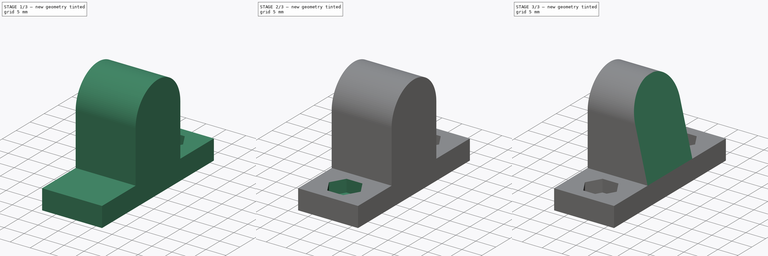
[diagram: build sequence overview — one tinted view per stage of 3, left to right]
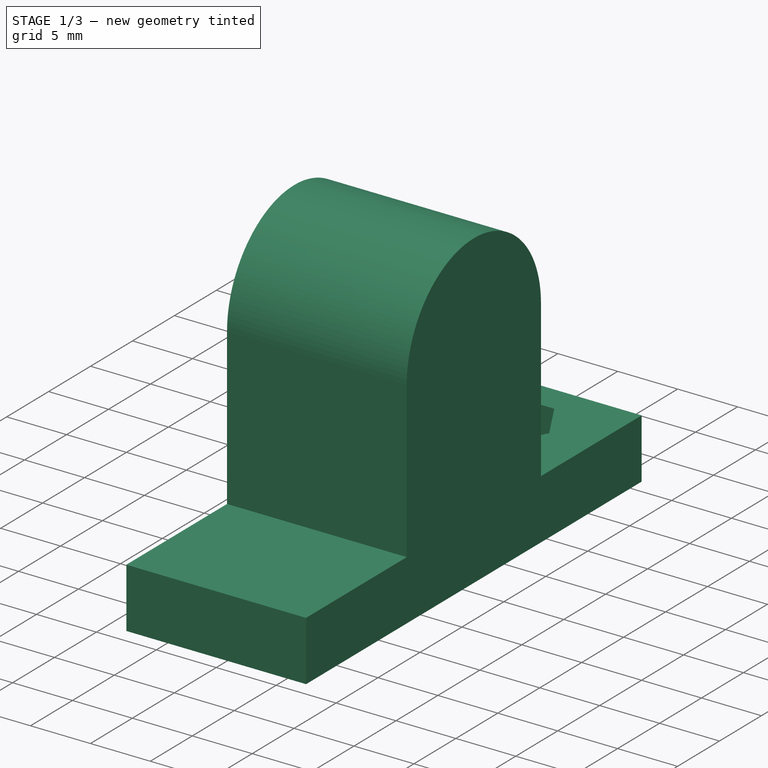
[diagram: stage 1 of 3 — iso view after this stage's code; geometry added in this stage tinted green]
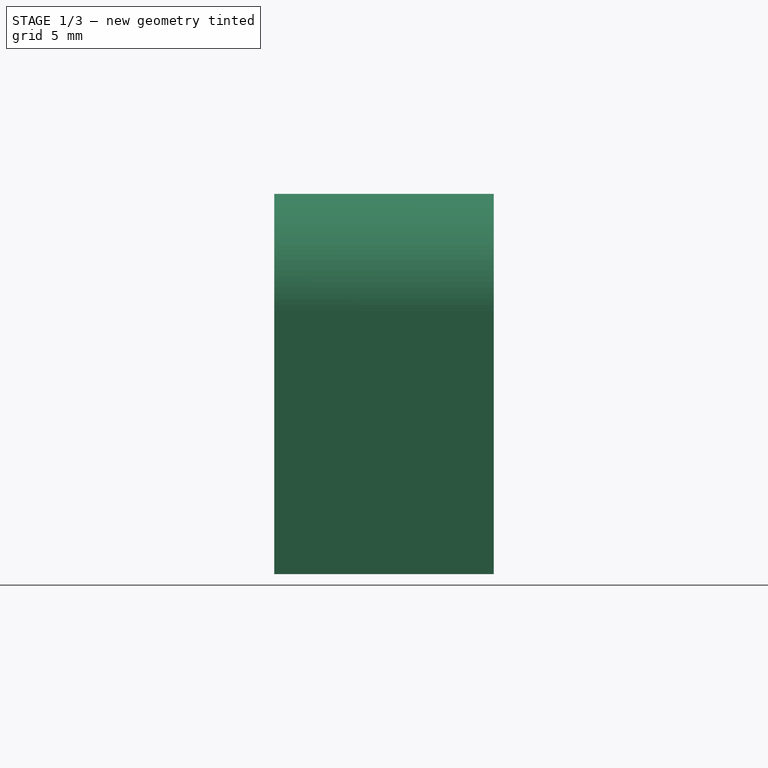
[diagram: stage 1 of 3 — front view after this stage's code; geometry added in this stage tinted green]
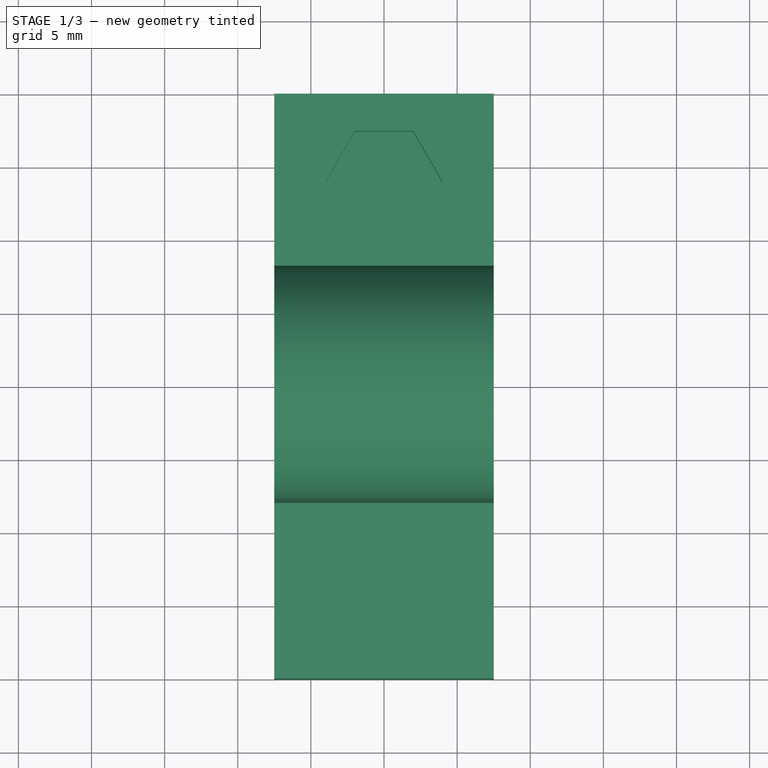
[diagram: stage 1 of 3 — top view after this stage's code; geometry added in this stage tinted green]
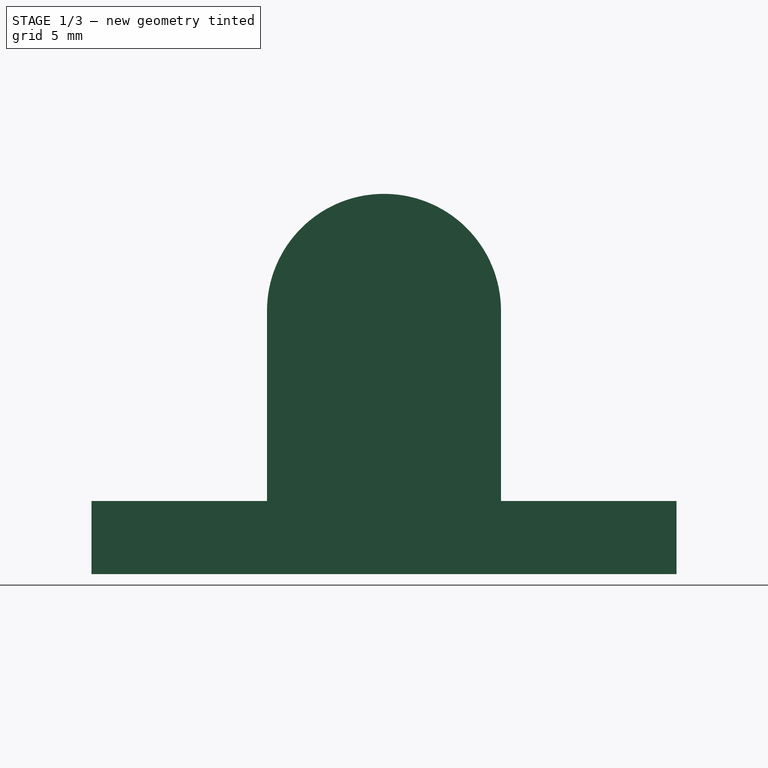
[diagram: stage 1 of 3 — right view after this stage's code; geometry added in this stage tinted green]
FCSTD DOCUMENT  (FreeCAD 0.19R24267 +148 (Git))
Label: GuidingEnd
License: All rights reserved
LicenseURL: http://en.wikipedia.org/wiki/All_rights_reserved
objects: Sketcher::SketchObject×5, PartDesign::Pocket×4, PartDesign::Body×2, PartDesign::Pad×1, PartDesign::Mirrored×1
note: 18 computed .brp shape members not serialized (recipe doc carries the construction recipe); baked Part::Feature solids carry a one-line shape summary decoded from their .brp

FEATURE [PartDesign::Body] Body
  Origin = -> Origin
FEATURE [Sketcher::SketchObject] Sketch
  FullyConstrained = true
  MapMode = 5
  Placement = pos=(0,0,0) rot=(0.57735,0.57735,0.57735;2.0944rad)
  Support = -> [YZ_Plane001]
  sketch-geometry (8):
    g0: LineSegment StartX=-20 StartY=0 StartZ=0 EndX=20 EndY=0 EndZ=0
    g1: LineSegment StartX=20 StartY=0 StartZ=0 EndX=20 EndY=5 EndZ=0
    g2: LineSegment StartX=20 StartY=5 StartZ=0 EndX=8 EndY=5 EndZ=0
    g3: LineSegment StartX=8 StartY=5 StartZ=0 EndX=8 EndY=18 EndZ=0
    g4: ArcOfCircle CenterX=0 CenterY=18 CenterZ=0 NormalX=0 NormalY=0 NormalZ=1 AngleXU=0 Radius=8 StartAngle=0 EndAngle=3.14159
    g5: LineSegment StartX=-8 StartY=18 StartZ=0 EndX=-8 EndY=5 EndZ=0
    g6: LineSegment StartX=-8 StartY=5 StartZ=0 EndX=-20 EndY=5 EndZ=0
    g7: LineSegment StartX=-20 StartY=5 StartZ=0 EndX=-20 EndY=0 EndZ=0
  constraints (21):
    c: PointOnObject(g0,g-1)
    c: Coincident(g0,g1)
    c: Coincident(g1,g2)
    c: Horizontal(g2)
    c: Coincident(g2,g3)
    c: Vertical(g3)
    c: PointOnObject(g4,g-2)
    c: Tangent(g4,g5) = -1.5708
    c: Coincident(g5,g6)
    c: Horizontal(g6)
    c: Coincident(g6,g7)
    c: Coincident(g7,g0)
    c: Vertical(g7)
    c: Symmetric(g5,g2,g-2)
    c: Symmetric(g0,g0,g-2)
    c: Tangent(g4,g3) = -1.5708
    c: DistanceY(g-1,g4) = 18
    c: DistanceY(g0,g6) = 5
    c: Radius(g4) = 8
    c: DistanceX(g0,g-1) = 20
    c: Vertical(g1)
FEATURE [PartDesign::Pad] Pad
  Direction = (1,1,1)
  Length = 15
  Length2 = 100
  Midplane = true
  Placement = pos=(0,0,0) rot=(0.57735,0.57735,0.57735;2.0944rad)
  Profile = -> Sketch
  Refine = true
  Type = 0
FEATURE [Sketcher::SketchObject] Sketch001
  ExternalGeometry = -> [Pad]
  FullyConstrained = true
  MapMode = 5
  Placement = pos=(-1.9e-15,2.8e-15,5) rot=(0,0,-1;1.5708rad)
  Support = -> [Pad]
  sketch-geometry (7):
    g0: LineSegment StartX=-10.55 StartY=1.99186 StartZ=0 EndX=-14 EndY=3.98372 EndZ=0
    g1: LineSegment StartX=-14 StartY=3.98372 StartZ=0 EndX=-17.45 EndY=1.99186 EndZ=0
    g2: LineSegment StartX=-17.45 StartY=1.99186 StartZ=0 EndX=-17.45 EndY=-1.99186 EndZ=0
    g3: LineSegment StartX=-17.45 StartY=-1.99186 StartZ=0 EndX=-14 EndY=-3.98372 EndZ=0
    g4: LineSegment StartX=-14 StartY=-3.98372 StartZ=0 EndX=-10.55 EndY=-1.99186 EndZ=0
    g5: LineSegment StartX=-10.55 StartY=-1.99186 StartZ=0 EndX=-10.55 EndY=1.99186 EndZ=0
    g6: Circle CenterX=-14 CenterY=0 CenterZ=0 NormalX=0 NormalY=0 NormalZ=1 AngleXU=0 Radius=3.98372
  constraints (17):
    c: Coincident(g0,g1)
    c: Coincident(g1,g2)
    c: Coincident(g2,g3)
    c: Coincident(g3,g4)
    c: Coincident(g4,g5)
    c: Coincident(g5,g0)
    c: Equal(g0, g1-g5) x5
    c: PointOnObject(g0,g6)
    c: PointOnObject(g1,g6)
    c: PointOnObject(g2,g6)
    c: PointOnObject(g3,g6)
    c: PointOnObject(g4,g6)
    c: PointOnObject(g5,g6)
    c: PointOnObject(g6,g-1)
    c: Vertical(g2)
    c: DistanceX(g-3,g6) = 6
    c: DistanceX(g2,g4) = 6.9
FEATURE [PartDesign::Pocket] Pocket
  BaseFeature = -> Pad
  Length = 3.1
  Length2 = 100
  Placement = pos=(0,0,0) rot=(0.57735,0.57735,0.57735;2.0944rad)
  Profile = -> Sketch001
  Refine = true
  Type = 0
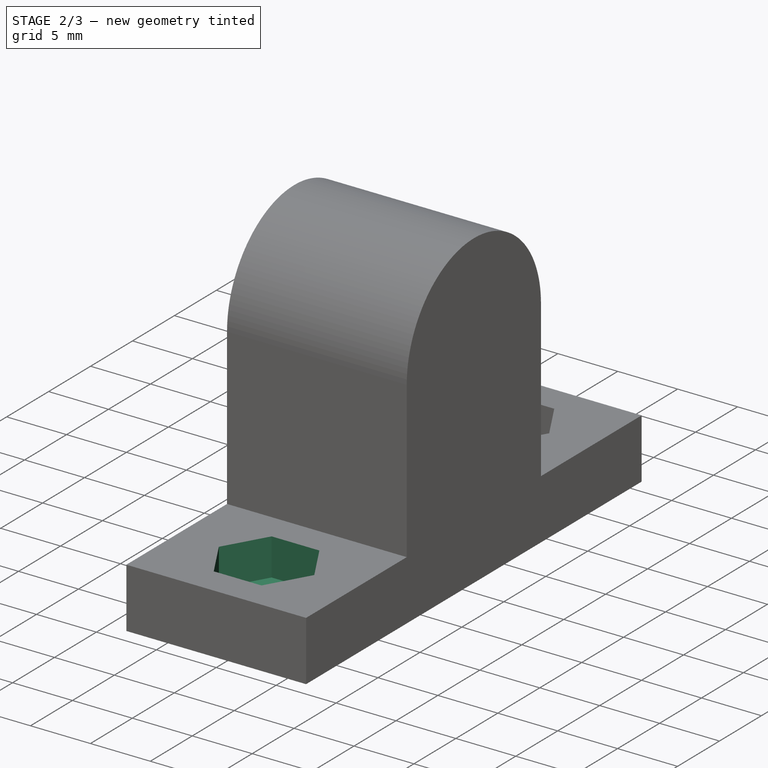
[diagram: stage 2 of 3 — iso view after this stage's code; geometry added in this stage tinted green]
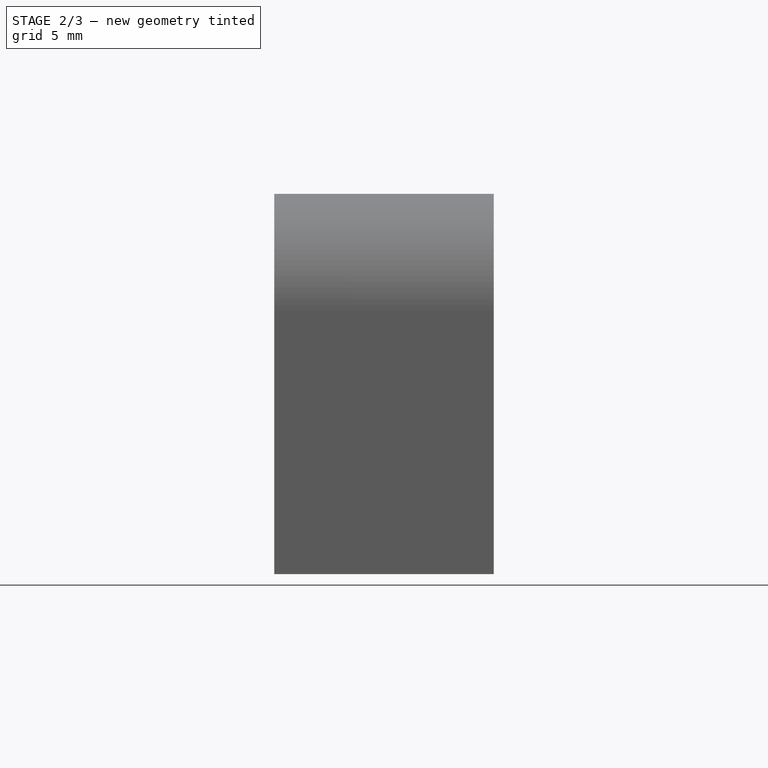
[diagram: stage 2 of 3 — front view after this stage's code; geometry added in this stage tinted green]
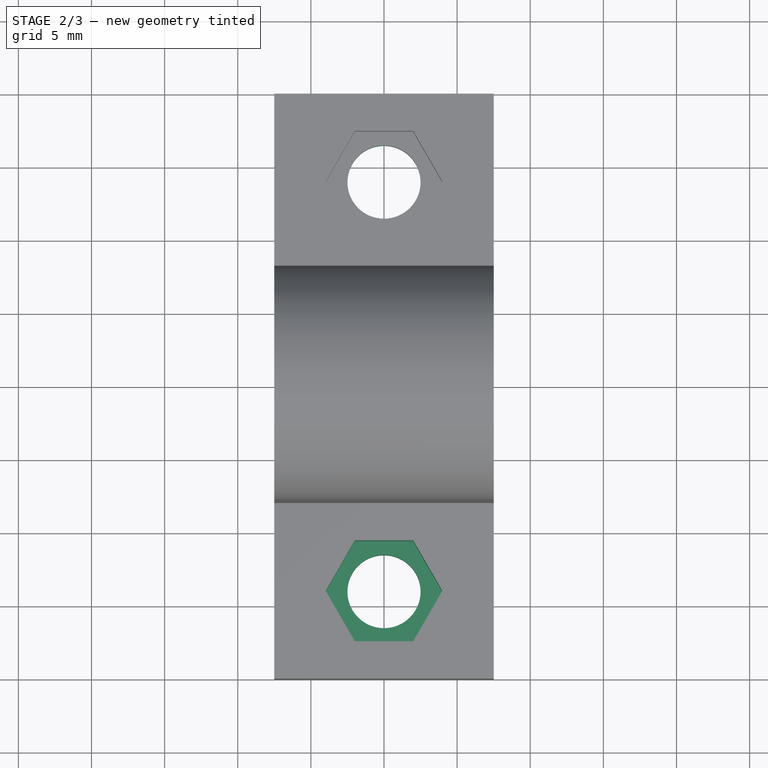
[diagram: stage 2 of 3 — top view after this stage's code; geometry added in this stage tinted green]
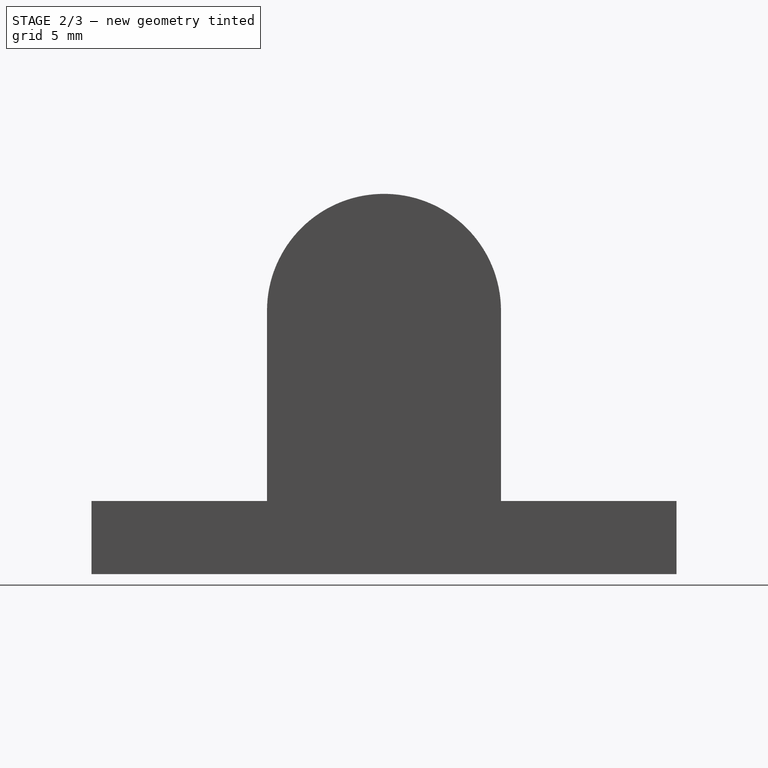
[diagram: stage 2 of 3 — right view after this stage's code; geometry added in this stage tinted green]
FEATURE [Sketcher::SketchObject] Sketch002
  ExternalGeometry = -> [Pocket]
  FullyConstrained = true
  MapMode = 5
  Placement = pos=(0,0,6.1e-15) rot=(0.707107,0.707107,0;3.14159rad)
  Support = -> [Pocket]
  sketch-geometry (1):
    g0: Circle CenterX=14 CenterY=0 CenterZ=0 NormalX=0 NormalY=0 NormalZ=1 AngleXU=0 Radius=2.5
  constraints (3):
    c: PointOnObject(g0,g-1)
    c: Diameter(g0) = 5
    c: DistanceX(g0,g-3) = 6
FEATURE [PartDesign::Pocket] Pocket001
  BaseFeature = -> Pocket
  Length = 5
  Length2 = 100
  Placement = pos=(0,0,0) rot=(0.57735,0.57735,0.57735;2.0944rad)
  Profile = -> Sketch002
  Refine = true
  Type = 1
FEATURE [PartDesign::Mirrored] Mirrored
  BaseFeature = -> Pocket001
  MirrorPlane = -> XZ_Plane001
  Originals = -> [Pocket,Pocket001]
  Placement = pos=(0,0,0) rot=(0.57735,0.57735,0.57735;2.0944rad)
  Refine = true
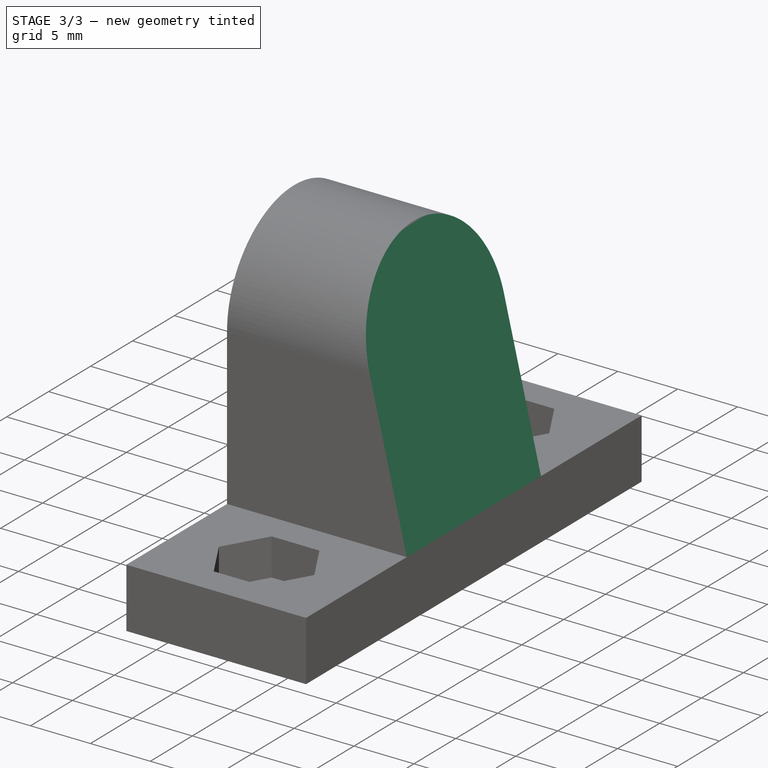
[diagram: stage 3 of 3 — iso view after this stage's code; geometry added in this stage tinted green]
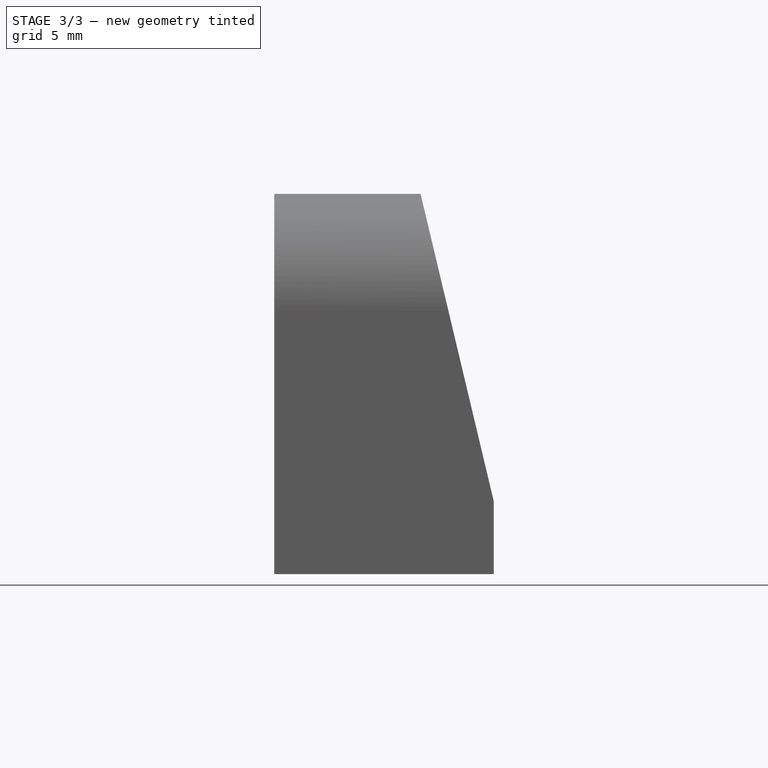
[diagram: stage 3 of 3 — front view after this stage's code; geometry added in this stage tinted green]
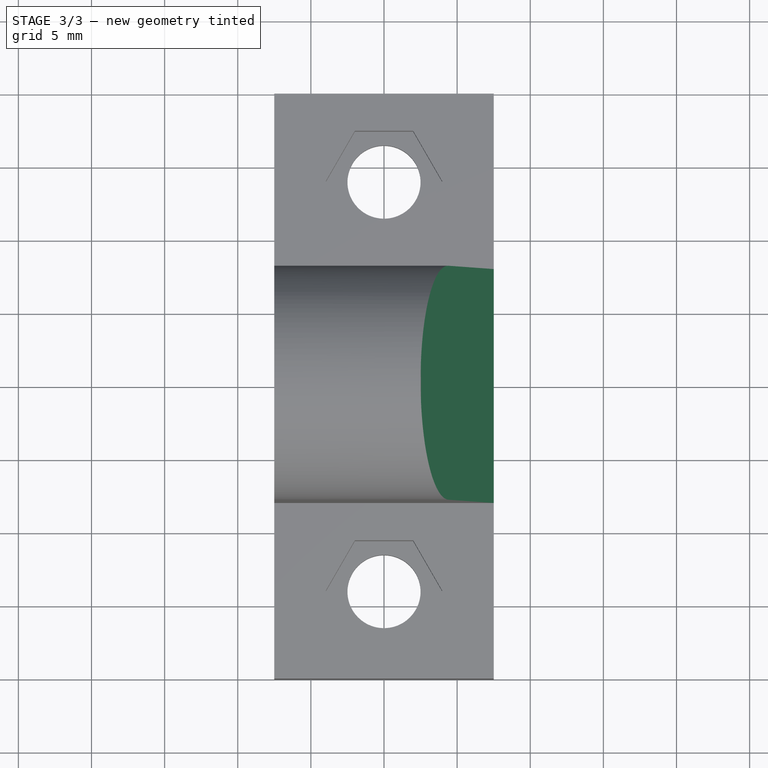
[diagram: stage 3 of 3 — top view after this stage's code; geometry added in this stage tinted green]
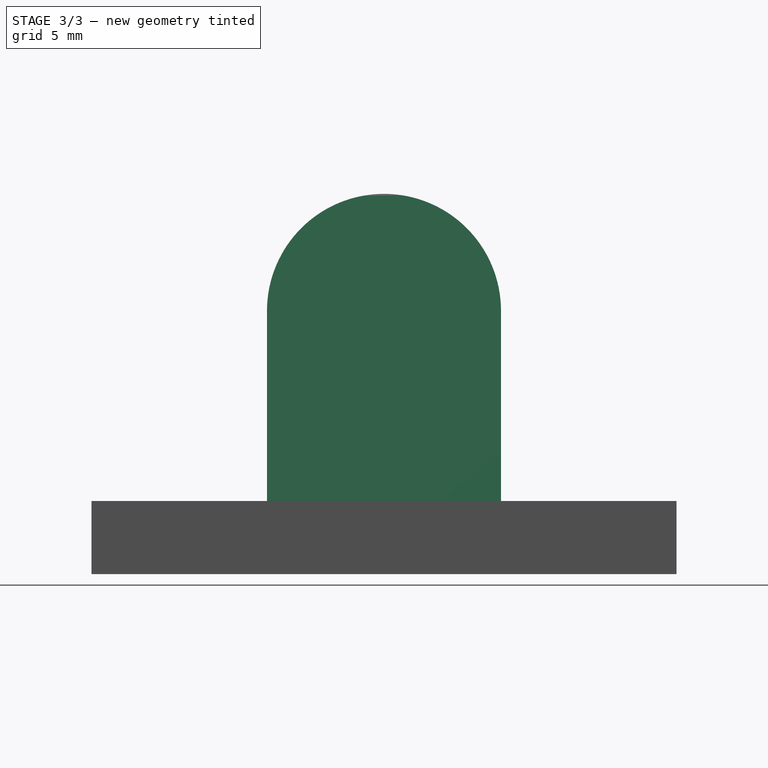
[diagram: stage 3 of 3 — right view after this stage's code; geometry added in this stage tinted green]
FEATURE [Sketcher::SketchObject] Sketch003
  ExternalGeometry = -> [Mirrored]
  FullyConstrained = true
  MapMode = 5
  Placement = pos=(-7.5,6.7e-15,-4.2e-15) rot=(-0.57735,-0.57735,0.57735;2.0944rad)
  Support = -> [Mirrored]
  sketch-geometry (1):
    g0: Circle CenterX=0 CenterY=-18 CenterZ=0 NormalX=0 NormalY=0 NormalZ=1 AngleXU=0 Radius=4.05
  constraints (2):
    c: Diameter(g0) = 8.1
    c: Coincident(g0,g-3)
FEATURE [PartDesign::Pocket] Pocket002
  BaseFeature = -> Mirrored
  Length = 8
  Length2 = 100
  Placement = pos=(0,0,0) rot=(0.57735,0.57735,0.57735;2.0944rad)
  Profile = -> Sketch003
  Refine = true
  Type = 0
FEATURE [Sketcher::SketchObject] Sketch004
  ExternalGeometry = -> [Pocket002]
  FullyConstrained = true
  MapMode = 5
  Placement = pos=(0,0,0) rot=(1,0,0;1.5708rad)
  Support = -> [XZ_Plane001]
  sketch-geometry (3):
    g0: LineSegment StartX=7.5 StartY=5 StartZ=0 EndX=2.5 EndY=26 EndZ=0
    g1: LineSegment StartX=2.5 StartY=26 StartZ=0 EndX=7.5 EndY=26 EndZ=0
    g2: LineSegment StartX=7.5 StartY=26 StartZ=0 EndX=7.5 EndY=5 EndZ=0
  constraints (7):
    c: Coincident(g-3,g0)
    c: Coincident(g0,g1)
    c: Horizontal(g1)
    c: Coincident(g1,g2)
    c: Coincident(g2,g0)
    c: Coincident(g1,g-4)
    c: DistanceX(g0,g1) = 5
FEATURE [PartDesign::Pocket] Pocket003
  BaseFeature = -> Pocket002
  Length = 5
  Length2 = 100
  Midplane = true
  Placement = pos=(0,0,0) rot=(0.57735,0.57735,0.57735;2.0944rad)
  Profile = -> Sketch004
  Refine = true
  Type = 1
FEATURE [PartDesign::Body] Body001
  Group = -> [Sketch,Pad,Sketch001,Pocket,Sketch002,Pocket001,Mirrored,Sketch003,Pocket002,Sketch004,Pocket003]
  Origin = -> Origin001
  Tip = -> Pocket003
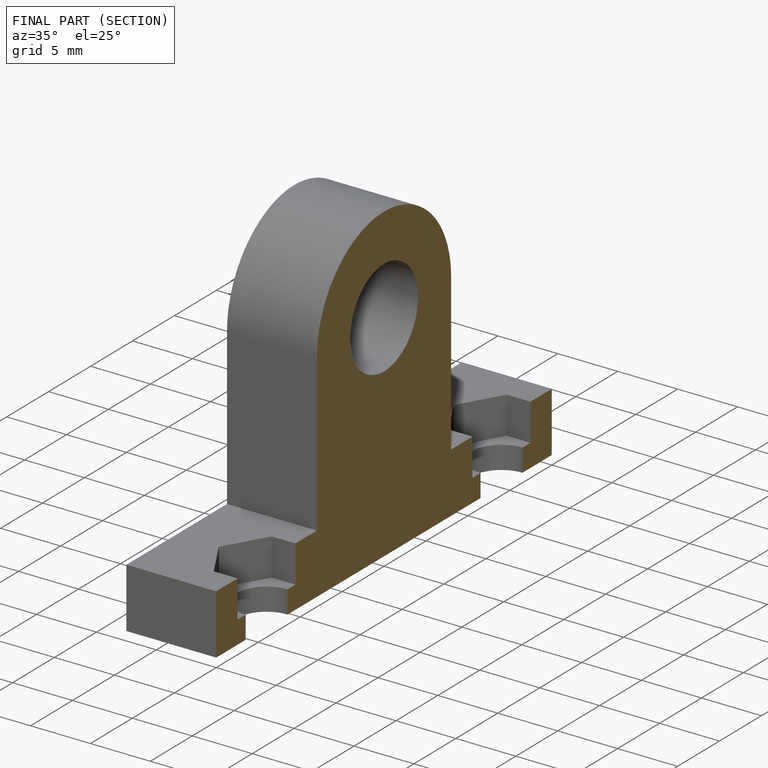
[diagram: finished part — half-section view (interior)]
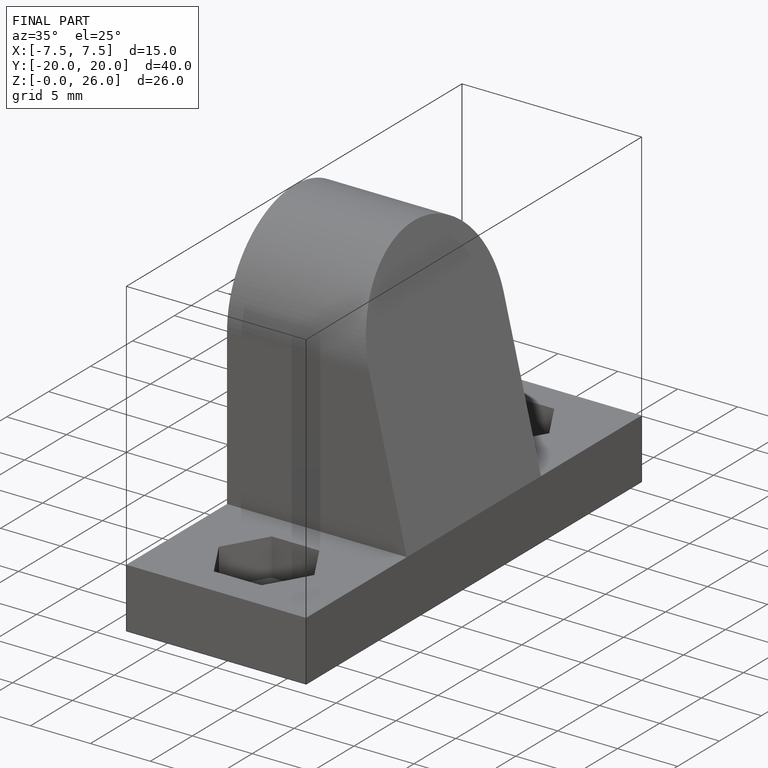
[diagram: finished part — iso view with bounding-box wireframe]
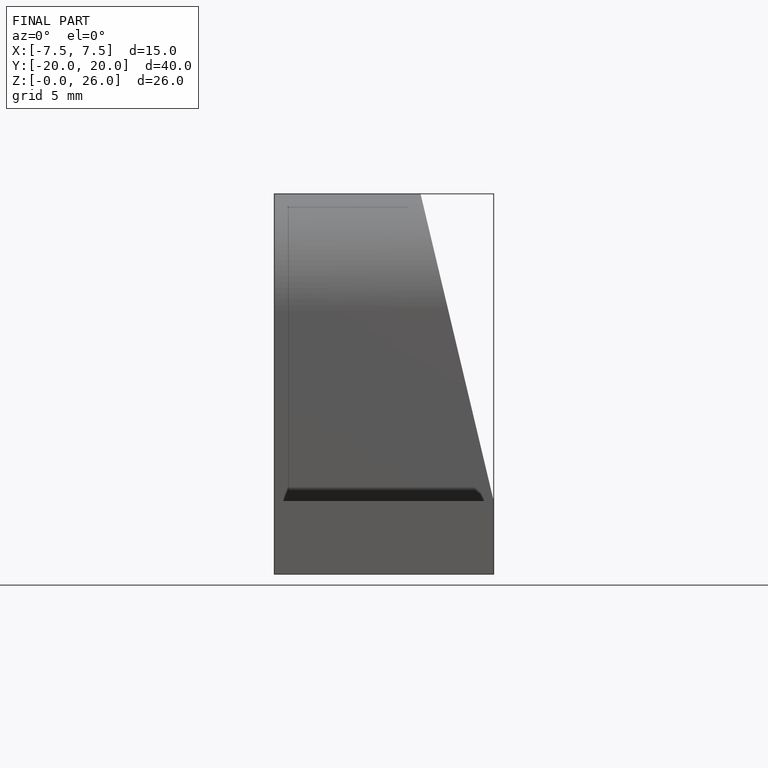
[diagram: finished part — front view with bounding-box wireframe]
